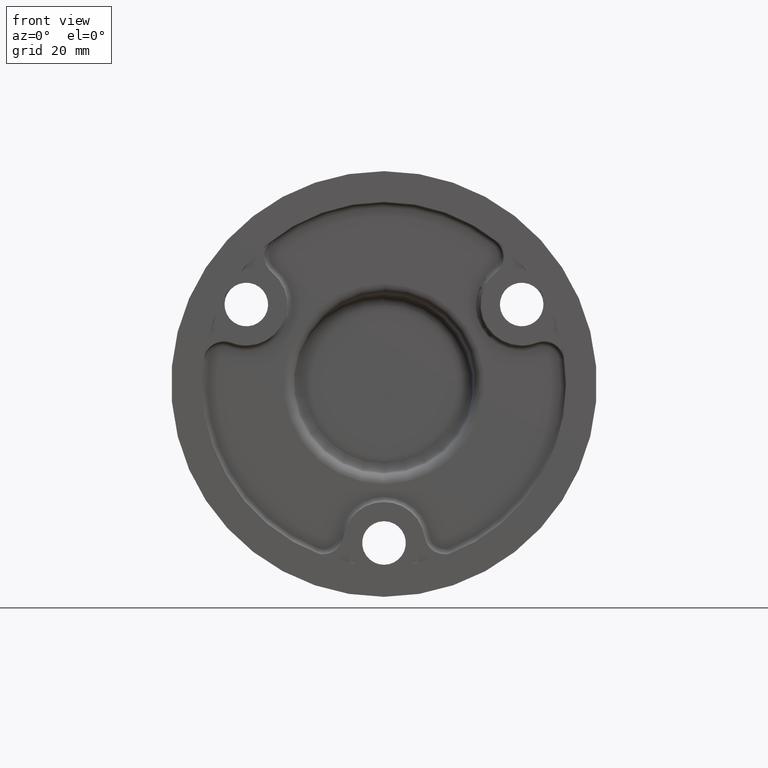
[diagram: clean part render]
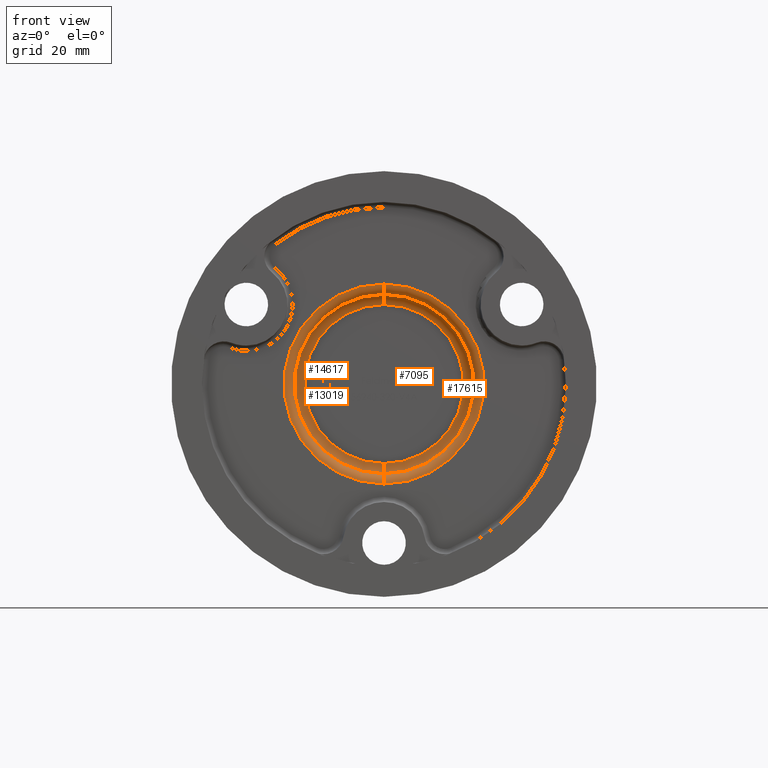
[diagram: same view with one multi-face feature highlighted, each face labeled with its STEP entity id]
A machine part, front view. The highlighted faces form ONE feature: a constant-radius fillet chain: 4 tangent blend faces with common blend radius 2 mm. The faces share edges in the B-rep.
Their STEP definitions:
[1] entity #14617 (Torus):
#374 = DIRECTION ( 'NONE',  ( 0.000000000000000000, 0.000000000000000000, 1.000000000000000000 ) ) ;
#849 = ORIENTED_EDGE ( 'NONE', *, *, #3383, .F. ) ;
#1488 = FACE_OUTER_BOUND ( 'NONE', #18378, .T. ) ;
#2099 = DIRECTION ( 'NONE',  ( 1.000000000000000000, 0.000000000000000000, 1.224646799147353207E-16 ) ) ;
#2280 = DIRECTION ( 'NONE',  ( -0.000000000000000000, 1.000000000000000000, -0.000000000000000000 ) ) ;
#3383 = EDGE_CURVE ( 'NONE', #13714, #9602, #7937, .T. ) ;
#4380 = AXIS2_PLACEMENT_3D ( 'NONE', #10741, #2099, #14209 ) ;
#4505 = CIRCLE ( 'NONE', #12132, 19.50000000000000355 ) ;
#5618 = CARTESIAN_POINT ( 'NONE',  ( 0.000000000000000000, 4.000000000000000000, 0.000000000000000000 ) ) ;
#5762 = CIRCLE ( 'NONE', #20041, 2.000000000000001776 ) ;
#5805 = EDGE_CURVE ( 'NONE', #13714, #11640, #5762, .T. ) ;
#7937 = CIRCLE ( 'NONE', #15097, 17.50000000000000355 ) ;
#8459 = CARTESIAN_POINT ( 'NONE',  ( 0.000000000000000000, 4.000000000000000000, 19.50000000000000355 ) ) ;
#8680 = DIRECTION ( 'NONE',  ( -1.000000000000000000, 0.000000000000000000, 0.000000000000000000 ) ) ;
#9018 = ORIENTED_EDGE ( 'NONE', *, *, #16997, .F. ) ;
#9232 = DIRECTION ( 'NONE',  ( 0.000000000000000000, 0.000000000000000000, 1.000000000000000000 ) ) ;
#9602 = VERTEX_POINT ( 'NONE', #14176 ) ;
#10209 = DIRECTION ( 'NONE',  ( 0.000000000000000000, 0.000000000000000000, 1.000000000000000000 ) ) ;
#10512 = ORIENTED_EDGE ( 'NONE', *, *, #16256, .F. ) ;
#10741 = CARTESIAN_POINT ( 'NONE',  ( 2.388061258337339333E-15, 4.000000000000000000, -19.50000000000000355 ) ) ;
#10986 = CARTESIAN_POINT ( 'NONE',  ( 0.000000000000000000, 4.000000000000000000, 0.000000000000000000 ) ) ;
#11525 = AXIS2_PLACEMENT_3D ( 'NONE', #5618, #2280, #374 ) ;
#11640 = VERTEX_POINT ( 'NONE', #17201 ) ;
#12112 = CIRCLE ( 'NONE', #4380, 2.000000000000001776 ) ;
#12132 = AXIS2_PLACEMENT_3D ( 'NONE', #21820, #16569, #19808 ) ;
#13714 = VERTEX_POINT ( 'NONE', #22158 ) ;
#14176 = CARTESIAN_POINT ( 'NONE',  ( 2.265596578422604185E-15, 4.000000000000000000, -17.50000000000000355 ) ) ;
#14209 = DIRECTION ( 'NONE',  ( 1.224646799147351482E-16, 0.000000000000000000, -1.000000000000000000 ) ) ;
#14617 = ADVANCED_FACE ( 'NONE', ( #1488 ), #16023, .T. ) ;
#15097 = AXIS2_PLACEMENT_3D ( 'NONE', #10986, #19682, #9232 ) ;
#16023 = TOROIDAL_SURFACE ( 'NONE', #11525, 19.50000000000000355, 2.000000000000000000 ) ;
#16256 = EDGE_CURVE ( 'NONE', #17831, #11640, #4505, .T. ) ;
#16569 = DIRECTION ( 'NONE',  ( -0.000000000000000000, 1.000000000000000000, -0.000000000000000000 ) ) ;
#16997 = EDGE_CURVE ( 'NONE', #9602, #17831, #12112, .T. ) ;
#17201 = CARTESIAN_POINT ( 'NONE',  ( 0.000000000000000000, 2.000000000000000000, 19.50000000000000355 ) ) ;
#17505 = ORIENTED_EDGE ( 'NONE', *, *, #5805, .T. ) ;
#17831 = VERTEX_POINT ( 'NONE', #18184 ) ;
#18184 = CARTESIAN_POINT ( 'NONE',  ( 2.388061258337339333E-15, 2.000000000000000000, -19.50000000000000355 ) ) ;
#18378 = EDGE_LOOP ( 'NONE', ( #9018, #849, #17505, #10512 ) ) ;
#19682 = DIRECTION ( 'NONE',  ( 0.000000000000000000, -1.000000000000000000, 0.000000000000000000 ) ) ;
#19808 = DIRECTION ( 'NONE',  ( 0.000000000000000000, 0.000000000000000000, 1.000000000000000000 ) ) ;
#20041 = AXIS2_PLACEMENT_3D ( 'NONE', #8459, #8680, #10209 ) ;
#21820 = CARTESIAN_POINT ( 'NONE',  ( 0.000000000000000000, 2.000000000000000000, 0.000000000000000000 ) ) ;
#22158 = CARTESIAN_POINT ( 'NONE',  ( 0.000000000000000000, 4.000000000000000000, 17.50000000000000355 ) ) ;
[2] entity #17615 (Torus):
#513 = ORIENTED_EDGE ( 'NONE', *, *, #16997, .T. ) ;
#2099 = DIRECTION ( 'NONE',  ( 1.000000000000000000, 0.000000000000000000, 1.224646799147353207E-16 ) ) ;
#2527 = TOROIDAL_SURFACE ( 'NONE', #11249, 19.50000000000000355, 2.000000000000000000 ) ;
#3563 = CARTESIAN_POINT ( 'NONE',  ( 0.000000000000000000, 4.000000000000000000, 0.000000000000000000 ) ) ;
#3700 = CARTESIAN_POINT ( 'NONE',  ( 0.000000000000000000, 4.000000000000000000, 0.000000000000000000 ) ) ;
#4380 = AXIS2_PLACEMENT_3D ( 'NONE', #10741, #2099, #14209 ) ;
#5762 = CIRCLE ( 'NONE', #20041, 2.000000000000001776 ) ;
#5805 = EDGE_CURVE ( 'NONE', #13714, #11640, #5762, .T. ) ;
#7625 = DIRECTION ( 'NONE',  ( -0.000000000000000000, 1.000000000000000000, -0.000000000000000000 ) ) ;
#7691 = AXIS2_PLACEMENT_3D ( 'NONE', #13385, #14923, #11457 ) ;
#8459 = CARTESIAN_POINT ( 'NONE',  ( 0.000000000000000000, 4.000000000000000000, 19.50000000000000355 ) ) ;
#8680 = DIRECTION ( 'NONE',  ( -1.000000000000000000, 0.000000000000000000, 0.000000000000000000 ) ) ;
#9602 = VERTEX_POINT ( 'NONE', #14176 ) ;
#10209 = DIRECTION ( 'NONE',  ( 0.000000000000000000, 0.000000000000000000, 1.000000000000000000 ) ) ;
#10568 = EDGE_CURVE ( 'NONE', #11640, #17831, #16604, .T. ) ;
#10741 = CARTESIAN_POINT ( 'NONE',  ( 2.388061258337339333E-15, 4.000000000000000000, -19.50000000000000355 ) ) ;
#11051 = AXIS2_PLACEMENT_3D ( 'NONE', #3700, #15954, #22661 ) ;
#11249 = AXIS2_PLACEMENT_3D ( 'NONE', #3563, #7625, #19812 ) ;
#11457 = DIRECTION ( 'NONE',  ( 0.000000000000000000, 0.000000000000000000, 1.000000000000000000 ) ) ;
#11640 = VERTEX_POINT ( 'NONE', #17201 ) ;
#12112 = CIRCLE ( 'NONE', #4380, 2.000000000000001776 ) ;
#12634 = EDGE_CURVE ( 'NONE', #9602, #13714, #12963, .T. ) ;
#12963 = CIRCLE ( 'NONE', #11051, 17.50000000000000355 ) ;
#13354 = ORIENTED_EDGE ( 'NONE', *, *, #10568, .F. ) ;
#13385 = CARTESIAN_POINT ( 'NONE',  ( 0.000000000000000000, 2.000000000000000000, 0.000000000000000000 ) ) ;
#13714 = VERTEX_POINT ( 'NONE', #22158 ) ;
#14176 = CARTESIAN_POINT ( 'NONE',  ( 2.265596578422604185E-15, 4.000000000000000000, -17.50000000000000355 ) ) ;
#14209 = DIRECTION ( 'NONE',  ( 1.224646799147351482E-16, 0.000000000000000000, -1.000000000000000000 ) ) ;
#14923 = DIRECTION ( 'NONE',  ( -0.000000000000000000, 1.000000000000000000, -0.000000000000000000 ) ) ;
#15954 = DIRECTION ( 'NONE',  ( 0.000000000000000000, -1.000000000000000000, 0.000000000000000000 ) ) ;
#16604 = CIRCLE ( 'NONE', #7691, 19.50000000000000355 ) ;
#16997 = EDGE_CURVE ( 'NONE', #9602, #17831, #12112, .T. ) ;
#17201 = CARTESIAN_POINT ( 'NONE',  ( 0.000000000000000000, 2.000000000000000000, 19.50000000000000355 ) ) ;
#17581 = FACE_OUTER_BOUND ( 'NONE', #22422, .T. ) ;
#17615 = ADVANCED_FACE ( 'NONE', ( #17581 ), #2527, .T. ) ;
#17831 = VERTEX_POINT ( 'NONE', #18184 ) ;
#18184 = CARTESIAN_POINT ( 'NONE',  ( 2.388061258337339333E-15, 2.000000000000000000, -19.50000000000000355 ) ) ;
#19812 = DIRECTION ( 'NONE',  ( 0.000000000000000000, 0.000000000000000000, 1.000000000000000000 ) ) ;
#20041 = AXIS2_PLACEMENT_3D ( 'NONE', #8459, #8680, #10209 ) ;
#21183 = ORIENTED_EDGE ( 'NONE', *, *, #5805, .F. ) ;
#22158 = CARTESIAN_POINT ( 'NONE',  ( 0.000000000000000000, 4.000000000000000000, 17.50000000000000355 ) ) ;
#22291 = ORIENTED_EDGE ( 'NONE', *, *, #12634, .F. ) ;
#22422 = EDGE_LOOP ( 'NONE', ( #22291, #513, #13354, #21183 ) ) ;
#22661 = DIRECTION ( 'NONE',  ( 0.000000000000000000, 0.000000000000000000, 1.000000000000000000 ) ) ;
[3] entity #7095 (Torus):
#1214 = CARTESIAN_POINT ( 'NONE',  ( 2.020667218593133889E-15, 6.000000000000000000, 15.50000000000000533 ) ) ;
#1544 = CIRCLE ( 'NONE', #6108, 2.000000000000000000 ) ;
#2352 = ORIENTED_EDGE ( 'NONE', *, *, #13719, .F. ) ;
#3268 = CARTESIAN_POINT ( 'NONE',  ( 1.898202538678398346E-15, 4.000000000000000000, 15.50000000000000533 ) ) ;
#3700 = CARTESIAN_POINT ( 'NONE',  ( 0.000000000000000000, 4.000000000000000000, 0.000000000000000000 ) ) ;
#3974 = DIRECTION ( 'NONE',  ( 0.000000000000000000, -1.000000000000000000, 0.000000000000000000 ) ) ;
#3976 = CARTESIAN_POINT ( 'NONE',  ( 0.000000000000000000, 6.000000000000000000, -15.50000000000000533 ) ) ;
#4043 = CIRCLE ( 'NONE', #7426, 2.000000000000000000 ) ;
#4163 = EDGE_LOOP ( 'NONE', ( #2352, #15929, #21620, #18223 ) ) ;
#4649 = AXIS2_PLACEMENT_3D ( 'NONE', #7433, #3974, #14317 ) ;
#6108 = AXIS2_PLACEMENT_3D ( 'NONE', #16452, #7883, #20084 ) ;
#7095 = ADVANCED_FACE ( 'NONE', ( #13374 ), #10064, .F. ) ;
#7426 = AXIS2_PLACEMENT_3D ( 'NONE', #3268, #17045, #11833 ) ;
#7433 = CARTESIAN_POINT ( 'NONE',  ( 0.000000000000000000, 6.000000000000000000, 0.000000000000000000 ) ) ;
#7455 = DIRECTION ( 'NONE',  ( 0.000000000000000000, 0.000000000000000000, -1.000000000000000000 ) ) ;
#7883 = DIRECTION ( 'NONE',  ( -1.000000000000000000, -0.000000000000000000, -0.000000000000000000 ) ) ;
#9101 = VERTEX_POINT ( 'NONE', #3976 ) ;
#9163 = CIRCLE ( 'NONE', #4649, 15.50000000000000533 ) ;
#9602 = VERTEX_POINT ( 'NONE', #14176 ) ;
#9981 = EDGE_CURVE ( 'NONE', #9101, #9602, #1544, .T. ) ;
#10064 = TOROIDAL_SURFACE ( 'NONE', #11147, 15.50000000000000533, 2.000000000000000000 ) ;
#11051 = AXIS2_PLACEMENT_3D ( 'NONE', #3700, #15954, #22661 ) ;
#11147 = AXIS2_PLACEMENT_3D ( 'NONE', #21653, #16084, #7455 ) ;
#11833 = DIRECTION ( 'NONE',  ( -1.224646799147353454E-16, 0.000000000000000000, -1.000000000000000000 ) ) ;
#12634 = EDGE_CURVE ( 'NONE', #9602, #13714, #12963, .T. ) ;
#12963 = CIRCLE ( 'NONE', #11051, 17.50000000000000355 ) ;
#13374 = FACE_OUTER_BOUND ( 'NONE', #4163, .T. ) ;
#13714 = VERTEX_POINT ( 'NONE', #22158 ) ;
#13719 = EDGE_CURVE ( 'NONE', #22616, #13714, #4043, .T. ) ;
#14176 = CARTESIAN_POINT ( 'NONE',  ( 2.265596578422604185E-15, 4.000000000000000000, -17.50000000000000355 ) ) ;
#14317 = DIRECTION ( 'NONE',  ( 0.000000000000000000, 0.000000000000000000, -1.000000000000000000 ) ) ;
#14585 = EDGE_CURVE ( 'NONE', #9101, #22616, #9163, .T. ) ;
#15929 = ORIENTED_EDGE ( 'NONE', *, *, #14585, .F. ) ;
#15954 = DIRECTION ( 'NONE',  ( 0.000000000000000000, -1.000000000000000000, 0.000000000000000000 ) ) ;
#16084 = DIRECTION ( 'NONE',  ( 0.000000000000000000, -1.000000000000000000, 0.000000000000000000 ) ) ;
#16452 = CARTESIAN_POINT ( 'NONE',  ( 0.000000000000000000, 4.000000000000000000, -15.50000000000000533 ) ) ;
#17045 = DIRECTION ( 'NONE',  ( 1.000000000000000000, 0.000000000000000000, -1.224646799147353207E-16 ) ) ;
#18223 = ORIENTED_EDGE ( 'NONE', *, *, #12634, .T. ) ;
#20084 = DIRECTION ( 'NONE',  ( 0.000000000000000000, 0.000000000000000000, 1.000000000000000000 ) ) ;
#21620 = ORIENTED_EDGE ( 'NONE', *, *, #9981, .T. ) ;
#21653 = CARTESIAN_POINT ( 'NONE',  ( 0.000000000000000000, 4.000000000000000000, 0.000000000000000000 ) ) ;
#22158 = CARTESIAN_POINT ( 'NONE',  ( 0.000000000000000000, 4.000000000000000000, 17.50000000000000355 ) ) ;
#22616 = VERTEX_POINT ( 'NONE', #1214 ) ;
#22661 = DIRECTION ( 'NONE',  ( 0.000000000000000000, 0.000000000000000000, 1.000000000000000000 ) ) ;
[4] entity #13019 (Torus):
#1214 = CARTESIAN_POINT ( 'NONE',  ( 2.020667218593133889E-15, 6.000000000000000000, 15.50000000000000533 ) ) ;
#1234 = CARTESIAN_POINT ( 'NONE',  ( 0.000000000000000000, 6.000000000000000000, 0.000000000000000000 ) ) ;
#1544 = CIRCLE ( 'NONE', #6108, 2.000000000000000000 ) ;
#1728 = FACE_OUTER_BOUND ( 'NONE', #17587, .T. ) ;
#2413 = DIRECTION ( 'NONE',  ( 0.000000000000000000, 0.000000000000000000, -1.000000000000000000 ) ) ;
#3014 = DIRECTION ( 'NONE',  ( 0.000000000000000000, 0.000000000000000000, -1.000000000000000000 ) ) ;
#3268 = CARTESIAN_POINT ( 'NONE',  ( 1.898202538678398346E-15, 4.000000000000000000, 15.50000000000000533 ) ) ;
#3383 = EDGE_CURVE ( 'NONE', #13714, #9602, #7937, .T. ) ;
#3976 = CARTESIAN_POINT ( 'NONE',  ( 0.000000000000000000, 6.000000000000000000, -15.50000000000000533 ) ) ;
#4023 = CARTESIAN_POINT ( 'NONE',  ( 0.000000000000000000, 4.000000000000000000, 0.000000000000000000 ) ) ;
#4043 = CIRCLE ( 'NONE', #7426, 2.000000000000000000 ) ;
#6108 = AXIS2_PLACEMENT_3D ( 'NONE', #16452, #7883, #20084 ) ;
#7426 = AXIS2_PLACEMENT_3D ( 'NONE', #3268, #17045, #11833 ) ;
#7883 = DIRECTION ( 'NONE',  ( -1.000000000000000000, -0.000000000000000000, -0.000000000000000000 ) ) ;
#7937 = CIRCLE ( 'NONE', #15097, 17.50000000000000355 ) ;
#8070 = DIRECTION ( 'NONE',  ( 0.000000000000000000, -1.000000000000000000, 0.000000000000000000 ) ) ;
#9101 = VERTEX_POINT ( 'NONE', #3976 ) ;
#9221 = DIRECTION ( 'NONE',  ( 0.000000000000000000, -1.000000000000000000, 0.000000000000000000 ) ) ;
#9232 = DIRECTION ( 'NONE',  ( 0.000000000000000000, 0.000000000000000000, 1.000000000000000000 ) ) ;
#9602 = VERTEX_POINT ( 'NONE', #14176 ) ;
#9981 = EDGE_CURVE ( 'NONE', #9101, #9602, #1544, .T. ) ;
#10986 = CARTESIAN_POINT ( 'NONE',  ( 0.000000000000000000, 4.000000000000000000, 0.000000000000000000 ) ) ;
#11833 = DIRECTION ( 'NONE',  ( -1.224646799147353454E-16, 0.000000000000000000, -1.000000000000000000 ) ) ;
#12869 = ORIENTED_EDGE ( 'NONE', *, *, #9981, .F. ) ;
#12980 = AXIS2_PLACEMENT_3D ( 'NONE', #4023, #9221, #2413 ) ;
#13019 = ADVANCED_FACE ( 'NONE', ( #1728 ), #20599, .F. ) ;
#13714 = VERTEX_POINT ( 'NONE', #22158 ) ;
#13719 = EDGE_CURVE ( 'NONE', #22616, #13714, #4043, .T. ) ;
#14176 = CARTESIAN_POINT ( 'NONE',  ( 2.265596578422604185E-15, 4.000000000000000000, -17.50000000000000355 ) ) ;
#14499 = ORIENTED_EDGE ( 'NONE', *, *, #18360, .F. ) ;
#15097 = AXIS2_PLACEMENT_3D ( 'NONE', #10986, #19682, #9232 ) ;
#16452 = CARTESIAN_POINT ( 'NONE',  ( 0.000000000000000000, 4.000000000000000000, -15.50000000000000533 ) ) ;
#16943 = ORIENTED_EDGE ( 'NONE', *, *, #13719, .T. ) ;
#17045 = DIRECTION ( 'NONE',  ( 1.000000000000000000, 0.000000000000000000, -1.224646799147353207E-16 ) ) ;
#17587 = EDGE_LOOP ( 'NONE', ( #14499, #16943, #20543, #12869 ) ) ;
#18360 = EDGE_CURVE ( 'NONE', #22616, #9101, #20812, .T. ) ;
#19682 = DIRECTION ( 'NONE',  ( 0.000000000000000000, -1.000000000000000000, 0.000000000000000000 ) ) ;
#20084 = DIRECTION ( 'NONE',  ( 0.000000000000000000, 0.000000000000000000, 1.000000000000000000 ) ) ;
#20543 = ORIENTED_EDGE ( 'NONE', *, *, #3383, .T. ) ;
#20599 = TOROIDAL_SURFACE ( 'NONE', #12980, 15.50000000000000533, 2.000000000000000000 ) ;
#20812 = CIRCLE ( 'NONE', #22518, 15.50000000000000533 ) ;
#22158 = CARTESIAN_POINT ( 'NONE',  ( 0.000000000000000000, 4.000000000000000000, 17.50000000000000355 ) ) ;
#22518 = AXIS2_PLACEMENT_3D ( 'NONE', #1234, #8070, #3014 ) ;
#22616 = VERTEX_POINT ( 'NONE', #1214 ) ;